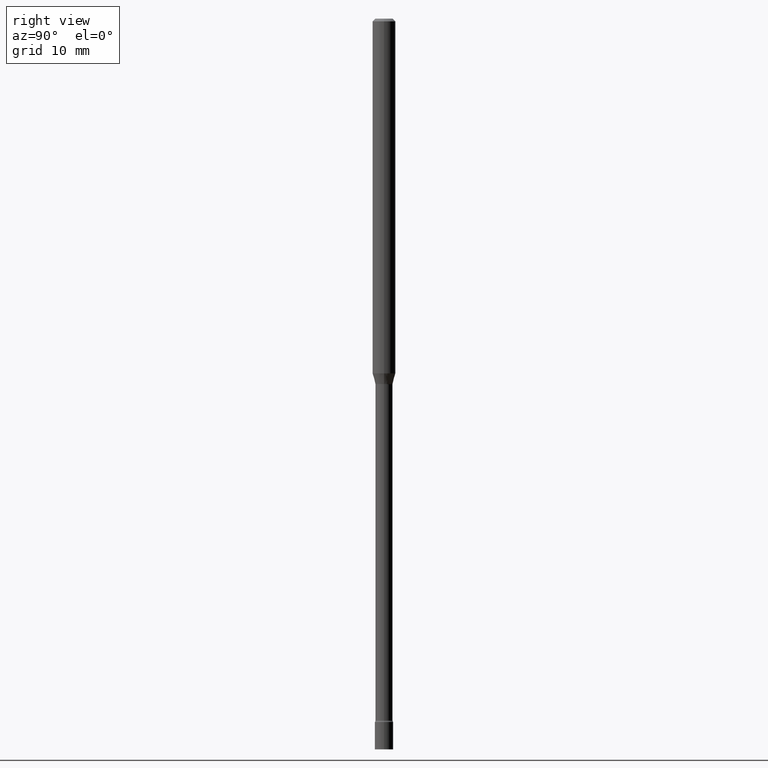
[diagram: clean part render]
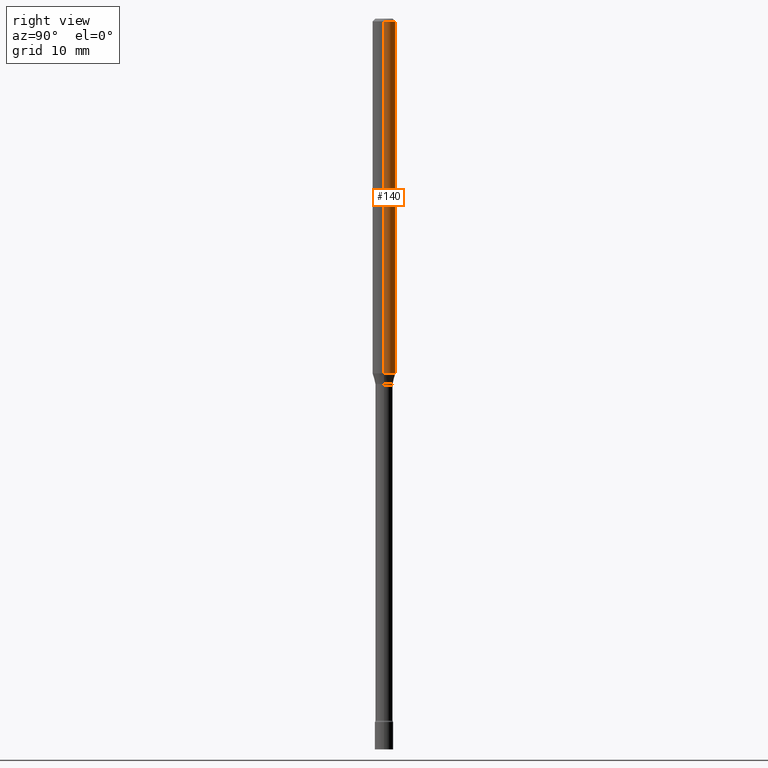
[diagram: same view with one face highlighted and labeled with its STEP entity id]
A machine part, right view. The second image highlights one B-rep face of the part: STEP entity #140.
In plain terms, the highlighted cylindrical surface (edge-blend (fillet) strip) has radius 1.5875 mm, axis along (-0, 0, 1).
Its self-contained STEP definition (entity closure, byte-faithful):
#29 = CARTESIAN_POINT ( 'NONE',  ( -0.06250000000000000000, 4.440892098500626162E-16, -3.074334431409316114E-30 ) ) ;
#43 = CARTESIAN_POINT ( 'NONE',  ( 0.06250000000000000000, -4.364351673553916694E-16, 3.047610484872459871E-30 ) ) ;
#44 = VERTEX_POINT ( 'NONE', #204 ) ;
#47 = CARTESIAN_POINT ( 'NONE',  ( 0.06250000000000000000, -4.888073874380389458E-16, -0.01500000000000003067 ) ) ;
#73 = CIRCLE ( 'NONE', #457, 0.06250000000000000000 ) ;
#79 = VERTEX_POINT ( 'NONE', #171 ) ;
#124 = EDGE_CURVE ( 'NONE', #266, #44, #404, .T. ) ;
#129 = LINE ( 'NONE', #43, #495 ) ;
#140 = ADVANCED_FACE ( 'NONE', ( #249 ), #307, .T. ) ;
#168 = VERTEX_POINT ( 'NONE', #47 ) ;
#171 = CARTESIAN_POINT ( 'NONE',  ( -0.06250000000000000000, -2.972592749470036882E-15, -0.01500000000000003067 ) ) ;
#186 = DIRECTION ( 'NONE',  ( -2.445468806185136877E-29, 3.491481338843145188E-15, 1.000000000000000000 ) ) ;
#190 = CARTESIAN_POINT ( 'NONE',  ( 4.749475097958652803E-29, -6.780991698557551523E-15, -1.942153212482682134 ) ) ;
#204 = CARTESIAN_POINT ( 'NONE',  ( -0.06250000000000000000, -6.336902488707488907E-15, -1.942153212482682134 ) ) ;
#240 = EDGE_CURVE ( 'NONE', #168, #79, #73, .T. ) ;
#249 = FACE_OUTER_BOUND ( 'NONE', #510, .T. ) ;
#250 = ORIENTED_EDGE ( 'NONE', *, *, #452, .F. ) ;
#262 = ORIENTED_EDGE ( 'NONE', *, *, #334, .T. ) ;
#266 = VERTEX_POINT ( 'NONE', #276 ) ;
#274 = DIRECTION ( 'NONE',  ( 1.000000000000000000, -6.982962677686262766E-15, 0.000000000000000000 ) ) ;
#276 = CARTESIAN_POINT ( 'NONE',  ( 0.06250000000000000000, -7.217426865912943982E-15, -1.942153212482682134 ) ) ;
#280 = DIRECTION ( 'NONE',  ( -2.445468806185136597E-29, 3.491481338843145583E-15, 1.000000000000000000 ) ) ;
#300 = AXIS2_PLACEMENT_3D ( 'NONE', #190, #479, #274 ) ;
#307 = CYLINDRICAL_SURFACE ( 'NONE', #318, 0.06250000000000000000 ) ;
#318 = AXIS2_PLACEMENT_3D ( 'NONE', #476, #427, #506 ) ;
#320 = ORIENTED_EDGE ( 'NONE', *, *, #240, .F. ) ;
#334 = EDGE_CURVE ( 'NONE', #44, #79, #433, .T. ) ;
#348 = VECTOR ( 'NONE', #186, 39.37007874015748143 ) ;
#352 = CARTESIAN_POINT ( 'NONE',  ( 3.668203209277712094E-31, -5.237222008264728876E-17, -0.01500000000000003067 ) ) ;
#365 = ORIENTED_EDGE ( 'NONE', *, *, #124, .T. ) ;
#404 = CIRCLE ( 'NONE', #300, 0.06250000000000000000 ) ;
#408 = DIRECTION ( 'NONE',  ( -2.445468806185136877E-29, 3.491481338843145188E-15, 1.000000000000000000 ) ) ;
#427 = DIRECTION ( 'NONE',  ( -2.445468806185136597E-29, 3.491481338843145583E-15, 1.000000000000000000 ) ) ;
#433 = LINE ( 'NONE', #29, #348 ) ;
#452 = EDGE_CURVE ( 'NONE', #266, #168, #129, .T. ) ;
#457 = AXIS2_PLACEMENT_3D ( 'NONE', #352, #280, #516 ) ;
#476 = CARTESIAN_POINT ( 'NONE',  ( 0.000000000000000000, 0.000000000000000000, 0.000000000000000000 ) ) ;
#479 = DIRECTION ( 'NONE',  ( -2.445468806185136597E-29, 3.491481338843145583E-15, 1.000000000000000000 ) ) ;
#495 = VECTOR ( 'NONE', #408, 39.37007874015748143 ) ;
#506 = DIRECTION ( 'NONE',  ( 1.000000000000000000, -6.982962677686266711E-15, 4.876176775795935793E-29 ) ) ;
#510 = EDGE_LOOP ( 'NONE', ( #365, #262, #320, #250 ) ) ;
#516 = DIRECTION ( 'NONE',  ( 1.000000000000000000, -6.982962677686266711E-15, 0.000000000000000000 ) ) ;